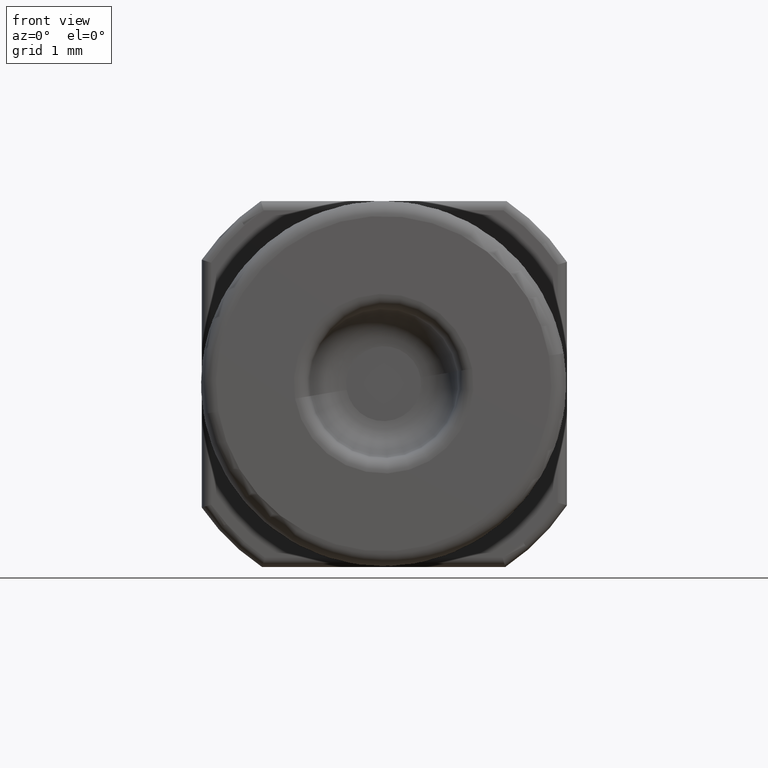
[diagram: clean part render]
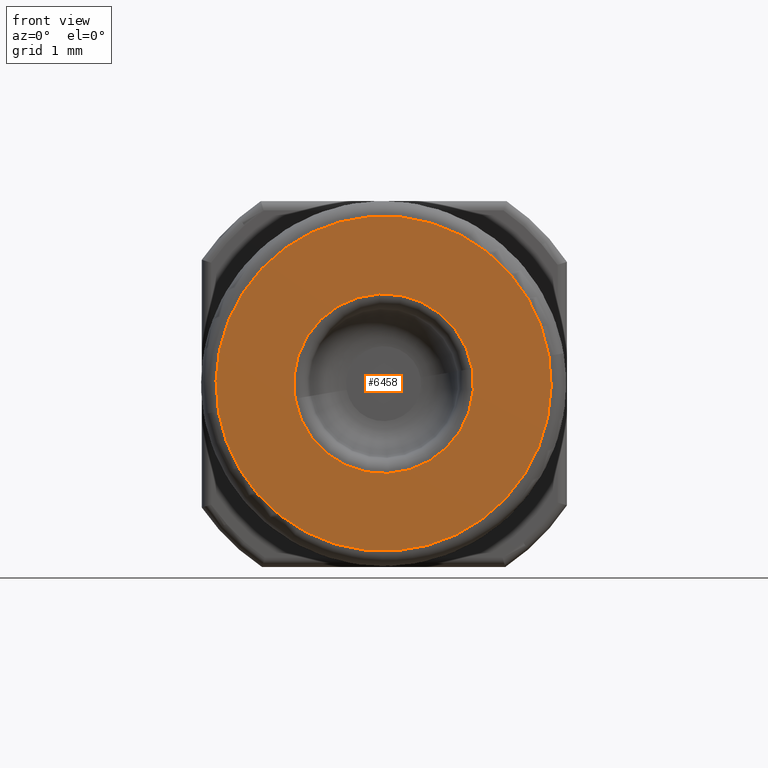
[diagram: same view with one face highlighted and labeled with its STEP entity id]
A machine part, front view. The second image highlights one B-rep face of the part: STEP entity #6458.
In plain terms, the highlighted planar face has unit normal (-0, 1, -0).
Its self-contained STEP definition (entity closure, byte-faithful):
#89 = AXIS2_PLACEMENT_3D ( 'NONE', #6528, #3605, #4701 ) ;
#255 = DIRECTION ( 'NONE',  ( 0.0000000000000000000, 0.0000000000000000000, 1.000000000000000000 ) ) ;
#410 = CARTESIAN_POINT ( 'NONE',  ( 0.0000000000000000000, 0.07699999999999998512, 0.04799999999999998712 ) ) ;
#775 = VERTEX_POINT ( 'NONE', #4191 ) ;
#838 = DIRECTION ( 'NONE',  ( 0.0000000000000000000, 0.0000000000000000000, 1.000000000000000000 ) ) ;
#852 = EDGE_CURVE ( 'NONE', #775, #1518, #2701, .T. ) ;
#1076 = ORIENTED_EDGE ( 'NONE', *, *, #6220, .F. ) ;
#1144 = CARTESIAN_POINT ( 'NONE',  ( -3.167956257713076055E-17, 0.07699999999999998512, 0.0000000000000000000 ) ) ;
#1367 = AXIS2_PLACEMENT_3D ( 'NONE', #7078, #2052, #838 ) ;
#1518 = VERTEX_POINT ( 'NONE', #5394 ) ;
#1766 = DIRECTION ( 'NONE',  ( 0.0000000000000000000, -1.000000000000000000, 0.0000000000000000000 ) ) ;
#2030 = EDGE_CURVE ( 'NONE', #1518, #775, #3616, .T. ) ;
#2045 = VERTEX_POINT ( 'NONE', #4976 ) ;
#2052 = DIRECTION ( 'NONE',  ( -0.0000000000000000000, 1.000000000000000000, -0.0000000000000000000 ) ) ;
#2164 = CARTESIAN_POINT ( 'NONE',  ( 0.0000000000000000000, 0.07699999999999997125, 0.0000000000000000000 ) ) ;
#2701 = CIRCLE ( 'NONE', #6443, 0.08949999999999999623 ) ;
#2724 = EDGE_CURVE ( 'NONE', #2045, #4050, #4880, .T. ) ;
#3037 = ORIENTED_EDGE ( 'NONE', *, *, #852, .T. ) ;
#3128 = EDGE_LOOP ( 'NONE', ( #1076, #6884 ) ) ;
#3252 = CIRCLE ( 'NONE', #89, 0.04799999999999998712 ) ;
#3323 = DIRECTION ( 'NONE',  ( -0.0000000000000000000, 1.000000000000000000, -0.0000000000000000000 ) ) ;
#3605 = DIRECTION ( 'NONE',  ( -0.0000000000000000000, 1.000000000000000000, -0.0000000000000000000 ) ) ;
#3616 = CIRCLE ( 'NONE', #7242, 0.08949999999999999623 ) ;
#4050 = VERTEX_POINT ( 'NONE', #410 ) ;
#4191 = CARTESIAN_POINT ( 'NONE',  ( 1.144948988055522469E-17, 0.07699999999999997125, -0.08949999999999999623 ) ) ;
#4400 = DIRECTION ( 'NONE',  ( -0.0000000000000000000, 1.000000000000000000, -0.0000000000000000000 ) ) ;
#4537 = ORIENTED_EDGE ( 'NONE', *, *, #2030, .T. ) ;
#4701 = DIRECTION ( 'NONE',  ( 0.0000000000000000000, 0.0000000000000000000, 1.000000000000000000 ) ) ;
#4880 = CIRCLE ( 'NONE', #1367, 0.04799999999999998712 ) ;
#4976 = CARTESIAN_POINT ( 'NONE',  ( 5.878304635907293934E-18, 0.07699999999999998512, -0.04799999999999998712 ) ) ;
#5049 = DIRECTION ( 'NONE',  ( 0.0000000000000000000, 0.0000000000000000000, 1.000000000000000000 ) ) ;
#5394 = CARTESIAN_POINT ( 'NONE',  ( 0.0000000000000000000, 0.07699999999999997125, 0.08949999999999999623 ) ) ;
#5654 = FACE_OUTER_BOUND ( 'NONE', #5875, .T. ) ;
#5693 = PLANE ( 'NONE',  #6652 ) ;
#5875 = EDGE_LOOP ( 'NONE', ( #4537, #3037 ) ) ;
#6102 = CARTESIAN_POINT ( 'NONE',  ( 0.0000000000000000000, 0.07699999999999997125, 0.0000000000000000000 ) ) ;
#6220 = EDGE_CURVE ( 'NONE', #4050, #2045, #3252, .T. ) ;
#6236 = DIRECTION ( 'NONE',  ( 0.0000000000000000000, -0.0000000000000000000, -1.000000000000000000 ) ) ;
#6443 = AXIS2_PLACEMENT_3D ( 'NONE', #2164, #4400, #255 ) ;
#6458 = ADVANCED_FACE ( 'NONE', ( #6861, #5654 ), #5693, .F. ) ;
#6528 = CARTESIAN_POINT ( 'NONE',  ( 0.0000000000000000000, 0.07699999999999998512, 0.0000000000000000000 ) ) ;
#6652 = AXIS2_PLACEMENT_3D ( 'NONE', #1144, #1766, #6236 ) ;
#6861 = FACE_BOUND ( 'NONE', #3128, .T. ) ;
#6884 = ORIENTED_EDGE ( 'NONE', *, *, #2724, .F. ) ;
#7078 = CARTESIAN_POINT ( 'NONE',  ( 0.0000000000000000000, 0.07699999999999998512, 0.0000000000000000000 ) ) ;
#7242 = AXIS2_PLACEMENT_3D ( 'NONE', #6102, #3323, #5049 ) ;